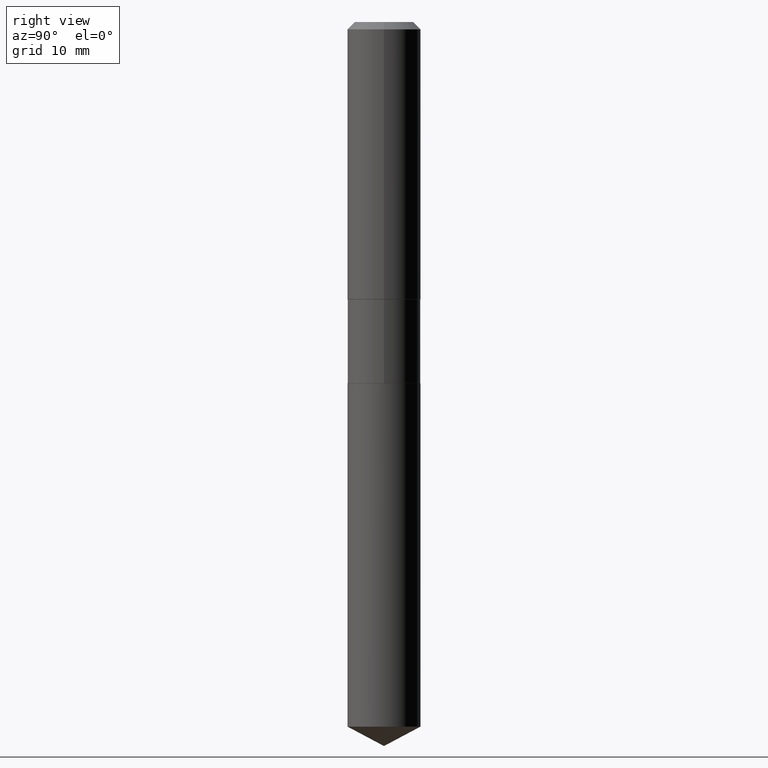
[diagram: clean part render]
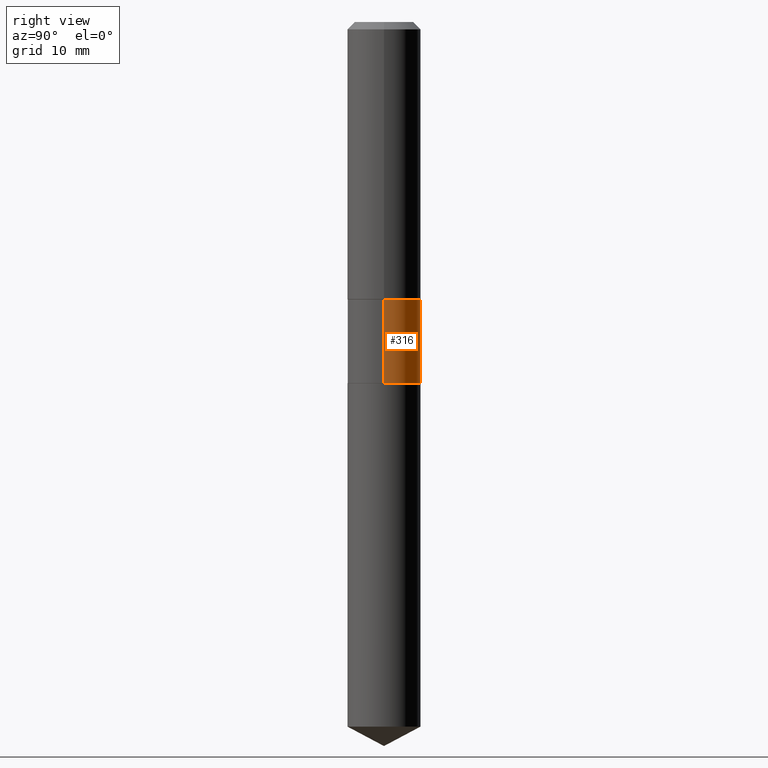
[diagram: same view with one face highlighted and labeled with its STEP entity id]
A machine part, right view. The second image highlights one B-rep face of the part: STEP entity #316.
In plain terms, the highlighted cylindrical surface (edge-blend (fillet) strip) has radius 5.9499 mm, axis along (-0, 0, 1).
Its self-contained STEP definition (entity closure, byte-faithful):
#20 = EDGE_CURVE ( 'NONE', #69, #275, #393, .T. ) ;
#28 = AXIS2_PLACEMENT_3D ( 'NONE', #422, #239, #343 ) ;
#29 = CARTESIAN_POINT ( 'NONE',  ( 0.2342499999999999583, -1.635759007248007614E-15, 1.142244409730197744E-29 ) ) ;
#31 = VECTOR ( 'NONE', #285, 39.37007874015748143 ) ;
#38 = VECTOR ( 'NONE', #266, 39.37007874015748143 ) ;
#69 = VERTEX_POINT ( 'NONE', #469 ) ;
#70 = CARTESIAN_POINT ( 'NONE',  ( -0.2342499999999999305, -5.490471775106280794E-15, -1.780099999999999349 ) ) ;
#78 = CARTESIAN_POINT ( 'NONE',  ( 0.2342499999999999305, -7.850944938522688772E-15, -1.780099999999999349 ) ) ;
#81 = VERTEX_POINT ( 'NONE', #211 ) ;
#82 = DIRECTION ( 'NONE',  ( -2.445468806185136597E-29, 3.491481338843145583E-15, 1.000000000000000000 ) ) ;
#88 = ORIENTED_EDGE ( 'NONE', *, *, #447, .F. ) ;
#147 = FACE_OUTER_BOUND ( 'NONE', #228, .T. ) ;
#198 = CARTESIAN_POINT ( 'NONE',  ( -0.2342499999999999583, 1.664446358518034389E-15, -1.152260544892211521E-29 ) ) ;
#205 = AXIS2_PLACEMENT_3D ( 'NONE', #416, #82, #213 ) ;
#211 = CARTESIAN_POINT ( 'NONE',  ( 0.2342500000000000138, -9.730409343221956034E-15, -2.318399999999999572 ) ) ;
#213 = DIRECTION ( 'NONE',  ( 1.000000000000000000, -6.982962677686265133E-15, 0.000000000000000000 ) ) ;
#224 = EDGE_CURVE ( 'NONE', #81, #340, #477, .T. ) ;
#228 = EDGE_LOOP ( 'NONE', ( #346, #371, #88, #307 ) ) ;
#239 = DIRECTION ( 'NONE',  ( -2.445468806185136597E-29, 3.491481338843145583E-15, 1.000000000000000000 ) ) ;
#266 = DIRECTION ( 'NONE',  ( -2.445468806185136877E-29, 3.491481338843145188E-15, 1.000000000000000000 ) ) ;
#275 = VERTEX_POINT ( 'NONE', #70 ) ;
#285 = DIRECTION ( 'NONE',  ( -2.445468806185136877E-29, 3.491481338843145188E-15, 1.000000000000000000 ) ) ;
#290 = CIRCLE ( 'NONE', #28, 0.2342499999999999305 ) ;
#307 = ORIENTED_EDGE ( 'NONE', *, *, #224, .F. ) ;
#314 = CIRCLE ( 'NONE', #205, 0.2342500000000000138 ) ;
#316 = ADVANCED_FACE ( 'NONE', ( #147 ), #490, .T. ) ;
#340 = VERTEX_POINT ( 'NONE', #78 ) ;
#343 = DIRECTION ( 'NONE',  ( 1.000000000000000000, -6.982962677686267499E-15, 0.000000000000000000 ) ) ;
#346 = ORIENTED_EDGE ( 'NONE', *, *, #389, .T. ) ;
#371 = ORIENTED_EDGE ( 'NONE', *, *, #20, .T. ) ;
#372 = CARTESIAN_POINT ( 'NONE',  ( 0.000000000000000000, 0.000000000000000000, 0.000000000000000000 ) ) ;
#389 = EDGE_CURVE ( 'NONE', #81, #69, #314, .T. ) ;
#393 = LINE ( 'NONE', #198, #38 ) ;
#411 = DIRECTION ( 'NONE',  ( -2.445468806185136597E-29, 3.491481338843145583E-15, 1.000000000000000000 ) ) ;
#416 = CARTESIAN_POINT ( 'NONE',  ( 5.669574880259619850E-29, -8.094650335973948025E-15, -2.318399999999999572 ) ) ;
#422 = CARTESIAN_POINT ( 'NONE',  ( 4.353179021890160223E-29, -6.215185931274680764E-15, -1.780099999999999349 ) ) ;
#447 = EDGE_CURVE ( 'NONE', #340, #275, #290, .T. ) ;
#468 = AXIS2_PLACEMENT_3D ( 'NONE', #372, #411, #485 ) ;
#469 = CARTESIAN_POINT ( 'NONE',  ( -0.2342500000000000415, -5.490471775106280794E-15, -2.318399999999999572 ) ) ;
#477 = LINE ( 'NONE', #29, #31 ) ;
#485 = DIRECTION ( 'NONE',  ( 1.000000000000000000, -6.982962677686266711E-15, 4.876176775795935793E-29 ) ) ;
#490 = CYLINDRICAL_SURFACE ( 'NONE', #468, 0.2342499999999999583 ) ;